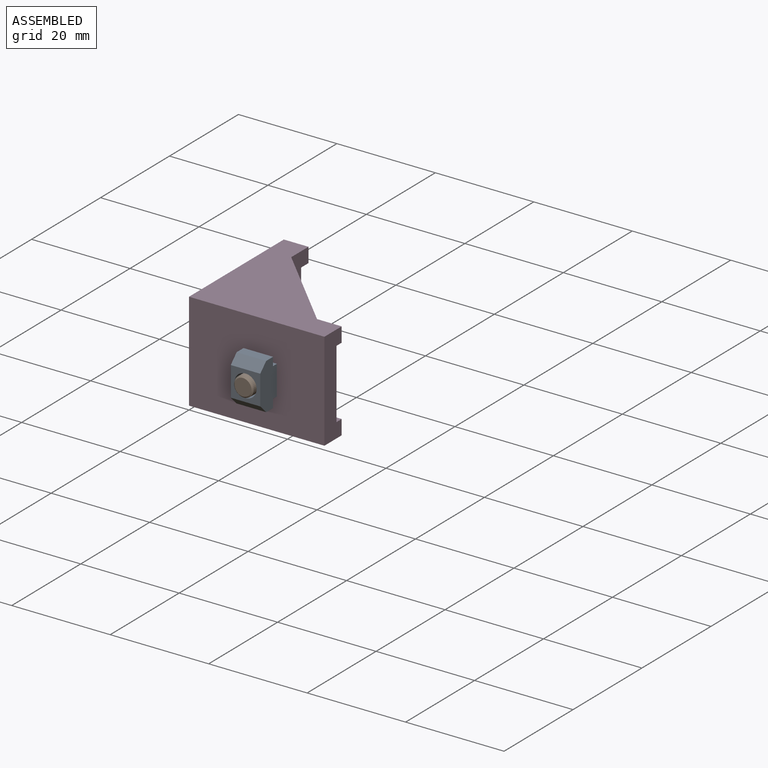
[diagram: assembled view]
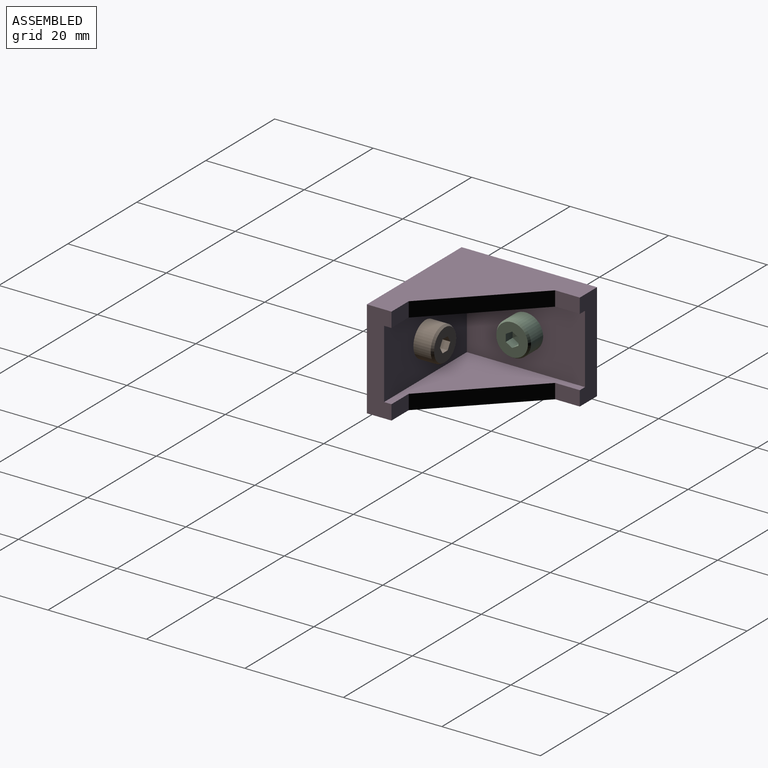
[diagram: assembled view, second angle]
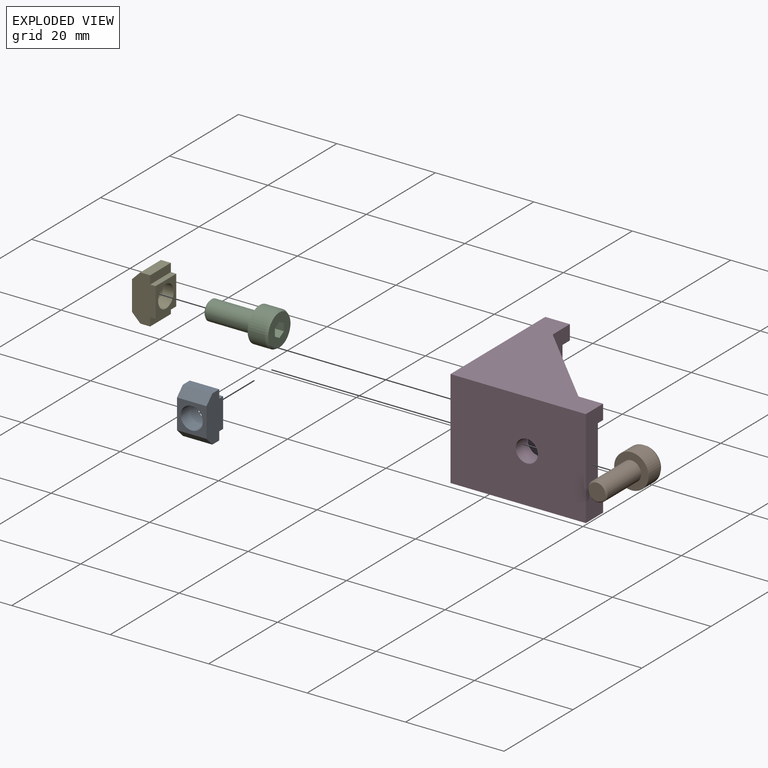
[diagram: exploded view]
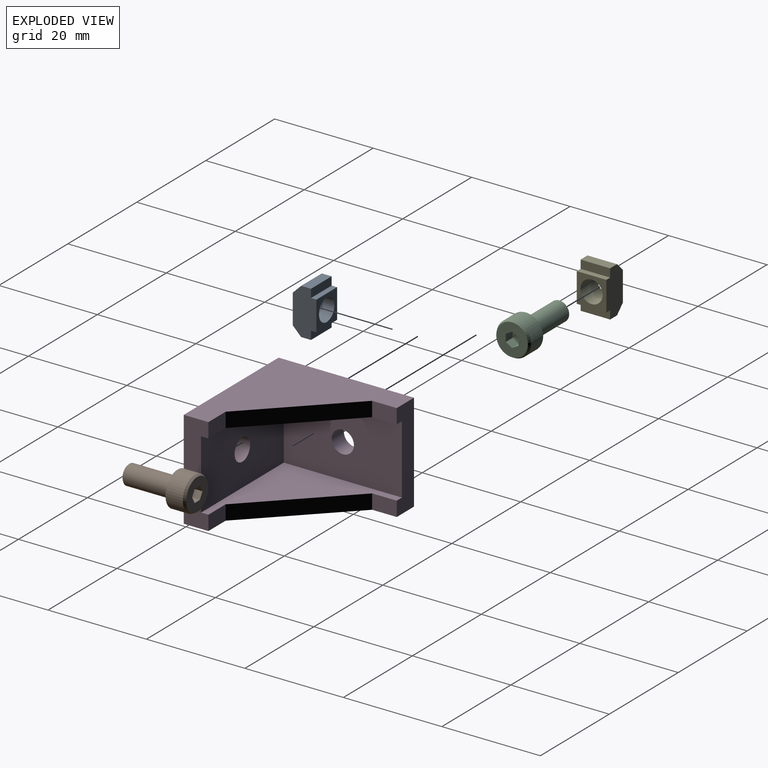
[diagram: exploded view, second angle]
ASSEMBLY  parts=5 mates=4
PART A: 13 faces, bbox 9.4x6x4.8 mm
  f0: plane 6x1.7mm, normal (-0.71,0,-0.71), area 14.4mm2, adj f1,f9,f10,f11
  f1: plane 6x6mm, normal (0,0,-1), area 20.1mm2, adj f0,f2,f10,f11,f12
  f2: plane 6x1.7mm, normal (0.71,0,-0.71), area 14.4mm2, adj f1,f3,f10,f11
  f3: plane 6x2mm, normal (1,0,0), area 12mm2, adj f2,f4,f10,f11
  f4: plane 6x1.7mm, normal (0,0,1), area 10.2mm2, adj f3,f5,f10,f11
  f5: plane 6x1.1mm, normal (1,0,0), area 6.6mm2, adj f4,f6,f10,f11
  f6: plane 6x6mm, normal (0,0,1), area 20.1mm2, adj f5,f7,f10,f11,f12
  f7: plane 6x1.1mm, normal (-1,0,0), area 6.6mm2, adj f6,f8,f10,f11
  f8: plane 6x1.7mm, normal (0,0,1), area 10.2mm2, adj f7,f9,f10,f11
  f9: plane 6x2mm, normal (-1,0,0), area 12mm2, adj f0,f8,f10,f11
  f10: plane 9.4x4.8mm, normal (0,-1,0), area 38.5mm2, adj f0,f1,f2,f3,f4,f5,f6,f7
  f11: plane 9.4x4.8mm, normal (0,1,0), area 38.5mm2, adj f0,f1,f2,f3,f4,f5,f6,f7
  f12: cylinder r=2.25mm len=4.8mm, axis (0,0,1), area 67.9mm2, adj f1,f6
PART B: 19 faces, bbox 7x7x14 mm
  f0: plane 6.43x6.43mm, normal (0,0,1), area 26.7mm2, adj f3,f10,f11,f12,f13,f14,f15
  f1: cylinder r=3.5mm len=7mm, axis (0,0,-1), area 77.2mm2, adj f2,f3
  f2: plane 7x7mm, normal (0,0,-1), area 26.1mm2, adj f1,f16
  f3: cone r=3.5mm half-angle=30deg, axis (0,0,-1), area 11.9mm2, adj f0,f1
  f4: plane 1.5x1.3mm, normal (-0.13,0.08,0.99), area 1mm2, adj f5,f9,f12
  f5: plane 1.5x1.3mm, normal (0,0.15,0.99), area 1mm2, adj f4,f6,f13
  f6: plane 1.5x1.3mm, normal (0.13,0.08,0.99), area 1mm2, adj f5,f7,f14
  f7: plane 1.5x1.3mm, normal (0.13,-0.08,0.99), area 1mm2, adj f6,f8,f15
  f8: plane 1.5x1.3mm, normal (0,-0.15,0.99), area 1mm2, adj f7,f9,f10
  f9: plane 1.5x1.3mm, normal (-0.13,-0.08,0.99), area 1mm2, adj f4,f8,f11
  f10: plane 2x1.5mm, normal (0,-1,0), area 3mm2, adj f0,f8,f11,f15
  f11: plane 2x1.3mm, normal (-0.87,-0.5,0), area 3mm2, adj f0,f9,f10,f12
  f12: plane 2x1.3mm, normal (-0.87,0.5,0), area 3mm2, adj f0,f4,f11,f13
  f13: plane 2x1.5mm, normal (0,1,0), area 3mm2, adj f0,f5,f12,f14
  f14: plane 2x1.3mm, normal (0.87,0.5,0), area 3mm2, adj f0,f6,f13,f15
  f15: plane 2x1.3mm, normal (0.87,-0.5,0), area 3mm2, adj f0,f7,f10,f14
  f16: cylinder r=1.99mm len=9.72mm, axis (0,0,1), area 121.5mm2, adj f2,f18
  f17: plane 3.42x3.42mm, normal (0,0,-1), area 9.2mm2, adj f18
  f18: cone r=1.71mm half-angle=45deg, axis (0,0,1), area 4.6mm2, adj f16,f17
PART C: same geometry as B
PART D: 18 faces, bbox 27.5x27.5x20 mm
  f0: plane 5x3mm, normal (0,1,0), area 15mm2, adj f1,f5,f8,f15
  f1: plane 17.5x17.5mm, normal (0.71,0.71,0), area 74.2mm2, adj f0,f2,f8,f15
  f2: plane 5x3mm, normal (1,0,0), area 15mm2, adj f1,f8,f9,f15
  f3: plane 27.5x27.5mm, normal (0,0,-1), area 403.1mm2, adj f4,f5,f6,f7,f9,f10,f11
  f4: plane 27.5x20mm, normal (0,-1,0), area 534.1mm2, adj f3,f5,f7,f8,f17
  f5: plane 20x5mm, normal (1,0,0), area 79mm2, adj f0,f3,f4,f6,f8,f12,f13,f15
  f6: plane 5x3mm, normal (0,1,0), area 15mm2, adj f3,f5,f10,f12
  f7: plane 27.5x20mm, normal (-1,0,0), area 534.1mm2, adj f3,f4,f8,f9,f16
  f8: plane 27.5x27.5mm, normal (0,0,1), area 403.1mm2, adj f0,f1,f2,f4,f5,f7,f9
  f9: plane 20x5mm, normal (0,1,0), area 79mm2, adj f2,f3,f7,f8,f11,f12,f14,f15
  f10: plane 17.5x17.5mm, normal (0.71,0.71,0), area 74.2mm2, adj f3,f6,f11,f12
  f11: plane 5x3mm, normal (1,0,0), area 15mm2, adj f3,f9,f10,f12
  f12: plane 24x24mm, normal (0,0,1), area 222.9mm2, adj f5,f6,f9,f10,f11,f13,f14
  f13: plane 24x14mm, normal (0,1,0), area 320.1mm2, adj f5,f12,f14,f15,f17
  f14: plane 24x14mm, normal (1,0,0), area 320.1mm2, adj f9,f12,f13,f15,f16
  f15: plane 24x24mm, normal (0,0,-1), area 222.9mm2, adj f0,f1,f2,f5,f9,f13,f14
  f16: cylinder r=2.25mm len=4.5mm, axis (1,0,0), area 49.5mm2, adj f7,f14
  f17: cylinder r=2.25mm len=4.5mm, axis (0,1,0), area 49.5mm2, adj f4,f13
PART E: same geometry as A
PLACE A rot(axis=(-0.58,0.58,0.58),120deg) t=(15.5,-5.75,0)mm
PLACE B rot(axis=(-1,0,0),90deg) t=(31.62,7.5,-42.44)mm
PLACE C rot(axis=(-0.71,0,-0.71),180deg) t=(7.5,-26.94,16.12)mm
PLACE D at identity fixed
PLACE E rot(axis=(-0.71,0,-0.71),180deg) t=(-5.75,15.5,0)mm
MATE fastened B.f1 <-> D.f17  axis (0,-1,0) through (15.5,3.5,0)mm
MATE fastened C.f1 <-> D.f16  axis (-1,0,0) through (3.5,15.5,0)mm
MATE fastened E.f12 <-> C.f1  axis (-1,0,0) through (-5.75,15.5,0)mm
MATE fastened B.f1 <-> A.f12  axis (0,-1,0) through (15.5,-6.5,0)mm
